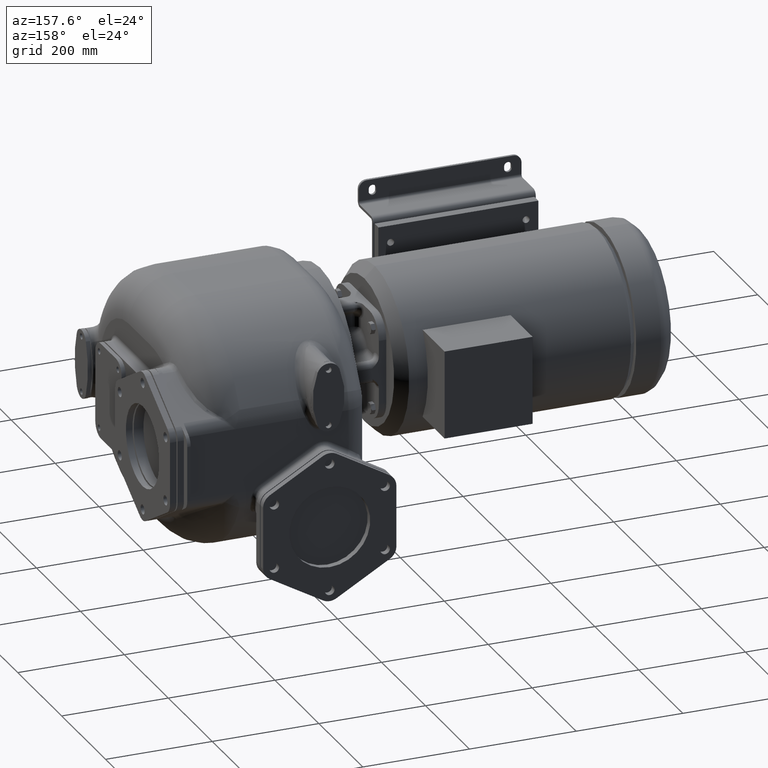
[diagram: clean part render]
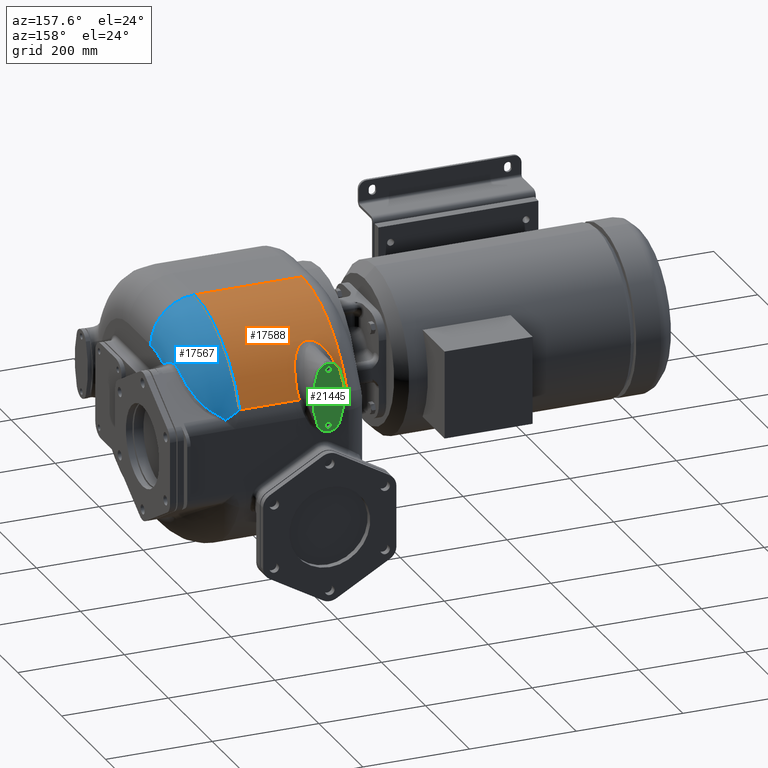
[diagram: same view with three faces highlighted in distinct colors, each labeled with its STEP entity id]
A machine part, auxiliary view with three faces highlighted in distinct colors.
Their STEP definitions:

[orange] entity #17588 — the highlighted cylindrical surface (partial cylindrical patch) has radius 226 mm, axis along (-1, 0, 0).
#3489=CARTESIAN_POINT('',(-4.034881129469E1,5.231279916753E2,6.666742171816E1));
#3490=CARTESIAN_POINT('',(-4.043840267067E1,5.227933993047E2,6.741168625166E1));
#3491=CARTESIAN_POINT('',(-4.060598618357E1,5.221145232466E2,6.890021450731E1));
#3492=CARTESIAN_POINT('',(-4.082259501127E1,5.210663920347E2,7.113364725316E1));
#3493=CARTESIAN_POINT('',(-4.100409262714E1,5.199897189407E2,7.336410481959E1));
#3494=CARTESIAN_POINT('',(-4.115033374763E1,5.188853598650E2,7.558918757461E1));
#3495=CARTESIAN_POINT('',(-4.126107317232E1,5.177543769543E2,7.780629919051E1));
#3496=CARTESIAN_POINT('',(-4.133625331583E1,5.165978751163E2,8.001300796250E1));
#3497=CARTESIAN_POINT('',(-4.137578047467E1,5.154172087132E2,8.220664577575E1));
#3498=CARTESIAN_POINT('',(-4.137958977997E1,5.142139346996E2,8.438443395936E1));
#3499=CARTESIAN_POINT('',(-4.134780671973E1,5.129897179080E2,8.654367099281E1));
#3500=CARTESIAN_POINT('',(-4.128049118567E1,5.117460567476E2,8.868219260581E1));
#3501=CARTESIAN_POINT('',(-4.117780732028E1,5.104844860412E2,9.079797297946E1));
#3502=CARTESIAN_POINT('',(-4.104000874430E1,5.092066352411E2,9.288902159051E1));
#3503=CARTESIAN_POINT('',(-4.086728104064E1,5.079142659240E2,9.495332443292E1));
#3504=CARTESIAN_POINT('',(-4.065999576186E1,5.066092140676E2,9.698894118238E1));
#3505=CARTESIAN_POINT('',(-4.041851747124E1,5.052932936397E2,9.899414509073E1));
#3506=CARTESIAN_POINT('',(-4.014320101450E1,5.039682871077E2,1.009674159084E2));
#3507=CARTESIAN_POINT('',(-3.983456542529E1,5.026359960242E2,1.029073444997E2));
#3508=CARTESIAN_POINT('',(-3.949310892022E1,5.012985173833E2,1.048122357952E2));
#3509=CARTESIAN_POINT('',(-3.911949099977E1,4.999580318657E2,1.066804364840E2));
#3510=CARTESIAN_POINT('',(-3.871450171215E1,4.986167676446E2,1.085103753053E2));
#3511=CARTESIAN_POINT('',(-3.827892120253E1,4.97277345E2,1.103001041464E2));
#3512=CARTESIAN_POINT('',(-3.781383236690E1,4.959423404236E2,1.120479022969E2));
#3513=CARTESIAN_POINT('',(-3.732034322288E1,4.946144880277E2,1.137519941261E2));
#3514=CARTESIAN_POINT('',(-3.679962749675E1,4.932966933678E2,1.154105392733E2));
#3515=CARTESIAN_POINT('',(-3.625328860371E1,4.919918580843E2,1.170218529688E2));
#3516=CARTESIAN_POINT('',(-3.568257640464E1,4.907025418829E2,1.185847936695E2));
#3517=CARTESIAN_POINT('',(-3.508885701845E1,4.894310897602E2,1.200985582785E2));
#3518=CARTESIAN_POINT('',(-3.447377817542E1,4.881798179152E2,1.215624367729E2));
#3519=CARTESIAN_POINT('',(-3.383862022484E1,4.869507770897E2,1.229760709294E2));
#3520=CARTESIAN_POINT('',(-3.318503713312E1,4.857458828797E2,1.243392739970E2));
#3521=CARTESIAN_POINT('',(-3.251465201643E1,4.845669622843E2,1.256519640245E2));
#3522=CARTESIAN_POINT('',(-3.182883323343E1,4.834156516315E2,1.269142629182E2));
#3523=CARTESIAN_POINT('',(-3.112943094373E1,4.822934682781E2,1.281264013235E2));
#3524=CARTESIAN_POINT('',(-3.041788296111E1,4.812016391618E2,1.292888898294E2));
#3525=CARTESIAN_POINT('',(-2.969550329272E1,4.801410059383E2,1.304025949371E2));
#3526=CARTESIAN_POINT('',(-2.896387760903E1,4.791122255273E2,1.314685045485E2));
#3527=CARTESIAN_POINT('',(-2.822437138835E1,4.781163551029E2,1.324871275090E2));
#3528=CARTESIAN_POINT('',(-2.747883177563E1,4.771543291465E2,1.334590490259E2));
#3529=CARTESIAN_POINT('',(-2.672916939532E1,4.762269177008E2,1.343849629823E2));
#3530=CARTESIAN_POINT('',(-2.597657639124E1,4.753347181670E2,1.352656733753E2));
#3531=CARTESIAN_POINT('',(-2.522287518781E1,4.744779972333E2,1.361022397176E2));
#3532=CARTESIAN_POINT('',(-2.446943995045E1,4.736568953076E2,1.368957673432E2));
#3533=CARTESIAN_POINT('',(-2.371703801963E1,4.728710953413E2,1.376477215100E2));
#3534=CARTESIAN_POINT('',(-2.296695517233E1,4.721199883568E2,1.383597532076E2));
#3535=CARTESIAN_POINT('',(-2.221979471068E1,4.714031267891E2,1.390332708732E2));
#3536=CARTESIAN_POINT('',(-2.147627617047E1,4.707198474818E2,1.396698045658E2));
#3537=CARTESIAN_POINT('',(-2.073731695626E1,4.700692390429E2,1.402710311737E2));
#3538=CARTESIAN_POINT('',(-2.000314215667E1,4.694506714915E2,1.408382897348E2));
#3539=CARTESIAN_POINT('',(-1.927434424921E1,4.688631493419E2,1.413731843857E2));
#3540=CARTESIAN_POINT('',(-1.855133900953E1,4.683056598236E2,1.418772620177E2));
#3541=CARTESIAN_POINT('',(-1.783421928553E1,4.677774756960E2,1.423517489380E2));
#3542=CARTESIAN_POINT('',(-1.712341568895E1,4.672774521665E2,1.427981888748E2));
#3543=CARTESIAN_POINT('',(-1.641899022449E1,4.668046828645E2,1.432178547759E2));
#3544=CARTESIAN_POINT('',(-1.572101013466E1,4.663583577802E2,1.436118866803E2));
#3545=CARTESIAN_POINT('',(-1.502966652234E1,4.659373249323E2,1.439816800992E2));
#3546=CARTESIAN_POINT('',(-1.434483684329E1,4.655408268734E2,1.443282402909E2));
#3547=CARTESIAN_POINT('',(-1.366654972949E1,4.651680012275E2,1.446526287394E2));
#3548=CARTESIAN_POINT('',(-1.299475930079E1,4.648178153928E2,1.449560188278E2));
#3549=CARTESIAN_POINT('',(-1.232930029791E1,4.644896264253E2,1.452392144470E2));
#3550=CARTESIAN_POINT('',(-1.167010087966E1,4.641825726662E2,1.455031814419E2));
#3551=CARTESIAN_POINT('',(-1.101694379460E1,4.638958174759E2,1.457488369290E2));
#3552=CARTESIAN_POINT('',(-1.036967757572E1,4.636287671610E2,1.459768669277E2));
#3553=CARTESIAN_POINT('',(-9.728076274112E0,4.633806520282E2,1.461880874093E2));
#3554=CARTESIAN_POINT('',(-9.091867682801E0,4.631508097990E2,1.463832031148E2));
#3555=CARTESIAN_POINT('',(-8.460863375274E0,4.629386895534E2,1.465628074972E2));
#3556=CARTESIAN_POINT('',(-7.834692341734E0,4.627436727882E2,1.467275360090E2));
#3557=CARTESIAN_POINT('',(-7.213119544507E0,4.625652226183E2,1.468779409385E2));
#3558=CARTESIAN_POINT('',(-6.595886132175E0,4.624028855057E2,1.470144919569E2));
#3559=CARTESIAN_POINT('',(-5.982612858585E0,4.622561989169E2,1.471376551479E2));
#3560=CARTESIAN_POINT('',(-5.373101343658E0,4.621247272340E2,1.472478635930E2));
#3561=CARTESIAN_POINT('',(-4.766978870246E0,4.620081628685E2,1.473454338734E2));
#3562=CARTESIAN_POINT('',(-4.163915379818E0,4.619060887541E2,1.474307657901E2));
#3563=CARTESIAN_POINT('',(-3.563461143278E0,4.618182424307E2,1.475041219536E2));
#3564=CARTESIAN_POINT('',(-2.965219998483E0,4.617443544656E2,1.475657638168E2));
#3565=CARTESIAN_POINT('',(-2.368941442614E0,4.616842121323E2,1.476158988816E2));
#3566=CARTESIAN_POINT('',(-1.774330493546E0,4.616376807034E2,1.476546636535E2));
#3567=CARTESIAN_POINT('',(-1.181367332302E0,4.616045466567E2,1.476822542062E2));
#3568=CARTESIAN_POINT('',(-5.899650440526E-1,4.615847817508E2,
1.476987078491E2));
#3569=CARTESIAN_POINT('',(-1.965071697042E-1,4.615803966876E2,
1.477023563135E2));
#3570=CARTESIAN_POINT('',(2.806081257791E-13,4.615803987135E2,
1.477023555046E2));
#3572=CARTESIAN_POINT('',(2.806081257791E-13,4.615803987135E2,
1.477023555046E2));
#3573=CARTESIAN_POINT('',(1.966707430850E-1,4.615803967245E2,1.477023562974E2));
#3574=CARTESIAN_POINT('',(5.904447502709E-1,4.615847873846E2,1.476987031534E2));
#3575=CARTESIAN_POINT('',(1.182286395754E0,4.616045762126E2,1.476822296030E2));
#3576=CARTESIAN_POINT('',(1.775659472608E0,4.616377496261E2,1.476546062528E2));
#3577=CARTESIAN_POINT('',(2.370652546062E0,4.616843331702E2,1.476157980240E2));
#3578=CARTESIAN_POINT('',(2.967288152497E0,4.617445421991E2,1.475656072728E2));
#3579=CARTESIAN_POINT('',(3.565868307715E0,4.618185089285E2,1.475038995388E2));
#3580=CARTESIAN_POINT('',(4.166647730898E0,4.619064484770E2,1.474304652623E2));
#3581=CARTESIAN_POINT('',(4.770030880015E0,4.620086296064E2,1.473450434742E2));
#3582=CARTESIAN_POINT('',(5.376471403173E0,4.621253165105E2,1.472473700248E2));
#3583=CARTESIAN_POINT('',(5.986305549906E0,4.622569287548E2,1.471370429058E2));
#3584=CARTESIAN_POINT('',(6.599912897314E0,4.624037740219E2,1.470137453228E2));
#3585=CARTESIAN_POINT('',(7.217497870988E0,4.625662938080E2,1.468770390888E2));
#3586=CARTESIAN_POINT('',(7.839450011452E0,4.627449524222E2,1.467264564114E2));
#3587=CARTESIAN_POINT('',(8.466033017340E0,4.629402065251E2,1.465615247345E2));
#3588=CARTESIAN_POINT('',(9.097492173142E0,4.631526005580E2,1.463816850656E2));
#3589=CARTESIAN_POINT('',(9.734215555534E0,4.633827602236E2,1.461862954405E2));
#3590=CARTESIAN_POINT('',(1.037640439850E1,4.636312447993E2,1.459747547897E2));
#3591=CARTESIAN_POINT('',(1.102434803134E1,4.638987277859E2,1.457463481542E2));
#3592=CARTESIAN_POINT('',(1.167829197170E1,4.641859930438E2,1.455002466015E2));
#3593=CARTESIAN_POINT('',(1.233840631113E1,4.644936465480E2,1.452357525093E2));
#3594=CARTESIAN_POINT('',(1.300492981159E1,4.648225440777E2,1.449519309356E2));
#3595=CARTESIAN_POINT('',(1.367795318247E1,4.651735670879E2,1.446477971924E2));
#3596=CARTESIAN_POINT('',(1.435766537748E1,4.655473740136E2,1.443225318256E2));
#3597=CARTESIAN_POINT('',(1.504413009598E1,4.659450246054E2,1.439749351540E2));
#3598=CARTESIAN_POINT('',(1.573734015406E1,4.663674038555E2,1.436039225992E2));
#3599=CARTESIAN_POINT('',(1.643743406378E1,4.668152851109E2,1.432084709928E2));
#3600=CARTESIAN_POINT('',(1.714420926426E1,4.672898396321E2,1.427871630939E2));
#3601=CARTESIAN_POINT('',(1.785760473377E1,4.677918852563E2,1.423388464878E2));
#3602=CARTESIAN_POINT('',(1.857754819266E1,4.683223334284E2,1.418622375665E2));
#3603=CARTESIAN_POINT('',(1.930358411463E1,4.688823334184E2,1.413557816570E2));
#3604=CARTESIAN_POINT('',(2.003561885947E1,4.694726070950E2,1.408182496121E2));
#3605=CARTESIAN_POINT('',(2.077311007695E1,4.700940918900E2,1.402481553978E2));
#3606=CARTESIAN_POINT('',(2.151536061973E1,4.707476964024E2,1.396439678358E2));
#3607=CARTESIAN_POINT('',(2.226203940194E1,4.714339297615E2,1.390044545626E2));
#3608=CARTESIAN_POINT('',(2.301201575971E1,4.721535153130E2,1.383281121195E2));
#3609=CARTESIAN_POINT('',(2.376437801296E1,4.729069061667E2,1.376136114562E2));
#3610=CARTESIAN_POINT('',(2.451844091624E1,4.736944303301E2,1.368596667755E2));
#3611=CARTESIAN_POINT('',(2.527299299494E1,4.745166973798E2,1.360646380481E2));
#3612=CARTESIAN_POINT('',(2.602720030017E1,4.753739691150E2,1.352271284171E2));
#3613=CARTESIAN_POINT('',(2.678006000991E1,4.762664910553E2,1.343456679196E2));
#3614=CARTESIAN_POINT('',(2.753025421969E1,4.771945243447E2,1.334186731284E2));
#3615=CARTESIAN_POINT('',(2.827692349056E1,4.781580068545E2,1.324447831087E2));
#3616=CARTESIAN_POINT('',(2.901841924255E1,4.791565741869E2,1.314228517594E2));
#3617=CARTESIAN_POINT('',(2.975320674038E1,4.801897391818E2,1.303517727569E2));
#3618=CARTESIAN_POINT('',(3.048000816953E1,4.812566487215E2,1.292307389536E2));
#3619=CARTESIAN_POINT('',(3.119673947915E1,4.823561251855E2,1.280592220399E2));
#3620=CARTESIAN_POINT('',(3.190182180154E1,4.834868718046E2,1.268367694861E2));
#3621=CARTESIAN_POINT('',(3.259353673E1,4.846471737141E2,1.255633434138E2));
#3622=CARTESIAN_POINT('',(3.326972139491E1,4.858350675100E2,1.242391679784E2));
#3623=CARTESIAN_POINT('',(3.392879148346E1,4.870484497130E2,1.228646298420E2));
#3624=CARTESIAN_POINT('',(3.456893355876E1,4.882850985137E2,1.214402712466E2));
#3625=CARTESIAN_POINT('',(3.518834473786E1,4.895427253883E2,1.199667460031E2));
#3626=CARTESIAN_POINT('',(3.578563526984E1,4.908189321960E2,1.184448869752E2));
#3627=CARTESIAN_POINT('',(3.635925325057E1,4.921115015014E2,1.168753695447E2));
#3628=CARTESIAN_POINT('',(3.690787666717E1,4.934181538011E2,1.152590012432E2));
#3629=CARTESIAN_POINT('',(3.743033580608E1,4.947365163640E2,1.135967784610E2));
#3630=CARTESIAN_POINT('',(3.792527298229E1,4.960641192050E2,1.118899133465E2));
#3631=CARTESIAN_POINT('',(3.839167973703E1,4.973984940042E2,1.101397256788E2));
#3632=CARTESIAN_POINT('',(3.882848069107E1,4.987370560365E2,1.083478150114E2));
#3633=CARTESIAN_POINT('',(3.923458423988E1,5.000771787180E2,1.065159887992E2));
#3634=CARTESIAN_POINT('',(3.960921522314E1,5.014162463946E2,1.046462129242E2));
#3635=CARTESIAN_POINT('',(3.995156642848E1,5.027519725435E2,1.027401670679E2));
#3636=CARTESIAN_POINT('',(4.026097681259E1,5.040821188621E2,1.007996222762E2));
#3637=CARTESIAN_POINT('',(4.053694120263E1,5.054045222692E2,9.882641369995E1));
#3638=CARTESIAN_POINT('',(4.077890709749E1,5.067172430537E2,9.682221373445E1));
#3639=CARTESIAN_POINT('',(4.098651107914E1,5.080183656416E2,9.478882361025E1));
#3640=CARTESIAN_POINT('',(4.115939494957E1,5.093060272243E2,9.272814170162E1));
#3641=CARTESIAN_POINT('',(4.129720412640E1,5.105784215742E2,9.064216412235E1));
#3642=CARTESIAN_POINT('',(4.139976784576E1,5.118338031650E2,8.853298724104E1));
#3643=CARTESIAN_POINT('',(4.146685199854E1,5.130705927478E2,8.640263060306E1));
#3644=CARTESIAN_POINT('',(4.149831411835E1,5.142873094740E2,8.425314195686E1));
#3645=CARTESIAN_POINT('',(4.149411199923E1,5.154825107413E2,8.208670406083E1));
#3646=CARTESIAN_POINT('',(4.145414174880E1,5.166546186505E2,7.990597737225E1));
#3647=CARTESIAN_POINT('',(4.137848545911E1,5.178021583663E2,7.771370003192E1));
#3648=CARTESIAN_POINT('',(4.126725166084E1,5.189238639285E2,7.551247840437E1));
#3649=CARTESIAN_POINT('',(4.112051581599E1,5.200187210403E2,7.330466637799E1));
#3650=CARTESIAN_POINT('',(4.093853320844E1,5.210857543358E2,7.109277717998E1));
#3651=CARTESIAN_POINT('',(4.072146494171E1,5.221241845798E2,6.887913601789E1));
#3652=CARTESIAN_POINT('',(4.055360032606E1,5.227966150731E2,6.740453317168E1));
#3653=CARTESIAN_POINT('',(4.046387854225E1,5.231279916753E2,6.666742171816E1));
#3655=CARTESIAN_POINT('',(1.52E2,3.17E2,-2.6E1));
#3656=DIRECTION('',(1.E0,0.E0,0.E0));
#3657=DIRECTION('',(0.E0,9.120707596254E-1,4.100328394609E-1));
#3658=AXIS2_PLACEMENT_3D('',#3655,#3656,#3657);
#3660=DIRECTION('',(1.E0,6.466642403076E-13,0.E0));
#3661=VECTOR('',#3660,2.02E2);
#3662=CARTESIAN_POINT('',(-5.E1,3.169999999998E2,2.E2));
#3663=LINE('',#3662,#3661);
#3664=CARTESIAN_POINT('',(-5.E1,3.17E2,-2.6E1));
#3665=DIRECTION('',(-1.E0,0.E0,0.E0));
#3666=DIRECTION('',(0.E0,0.E0,1.E0));
#3667=AXIS2_PLACEMENT_3D('',#3664,#3665,#3666);
#3707=DIRECTION('',(1.E0,2.133279841483E-11,-4.741718024245E-11));
#3708=VECTOR('',#3707,9.651188705311E0);
#3709=CARTESIAN_POINT('',(-5.E1,5.231279916751E2,6.666742171862E1));
#3710=LINE('',#3709,#3708);
#6944=DIRECTION('',(1.E0,0.E0,0.E0));
#6945=VECTOR('',#6944,1.115361214577E2);
#6946=CARTESIAN_POINT('',(4.046387854225E1,5.231279916753E2,6.666742171816E1));
#6947=LINE('',#6946,#6945);
#12473=CARTESIAN_POINT('',(-5.E1,3.169999999998E2,2.E2));
#12474=CARTESIAN_POINT('',(1.52E2,3.169999999999E2,2.E2));
#12475=VERTEX_POINT('',#12473);
#12476=VERTEX_POINT('',#12474);
#12491=VERTEX_POINT('',#3489);
#12492=VERTEX_POINT('',#3570);
#12495=VERTEX_POINT('',#3653);
#12545=CARTESIAN_POINT('',(-5.E1,5.231279916753E2,6.666742171816E1));
#12547=VERTEX_POINT('',#12545);
#12591=CARTESIAN_POINT('',(1.52E2,5.231279916753E2,6.666742171816E1));
#12592=VERTEX_POINT('',#12591);
#17568=CARTESIAN_POINT('',(-8.7E1,3.17E2,-2.6E1));
#17569=DIRECTION('',(-1.E0,0.E0,0.E0));
#17570=DIRECTION('',(0.E0,0.E0,1.E0));
#17571=AXIS2_PLACEMENT_3D('',#17568,#17569,#17570);
#17572=CYLINDRICAL_SURFACE('',#17571,2.26E2);
#17574=ORIENTED_EDGE('',*,*,#17573,.T.);
#17576=ORIENTED_EDGE('',*,*,#17575,.T.);
#17578=ORIENTED_EDGE('',*,*,#17577,.T.);
#17579=ORIENTED_EDGE('',*,*,#17555,.T.);
#17581=ORIENTED_EDGE('',*,*,#17580,.F.);
#17583=ORIENTED_EDGE('',*,*,#17582,.T.);
#17585=ORIENTED_EDGE('',*,*,#17584,.T.);
#17586=EDGE_LOOP('',(#17574,#17576,#17578,#17579,#17581,#17583,#17585));
#17587=FACE_OUTER_BOUND('',#17586,.F.);
#17588=ADVANCED_FACE('',(#17587),#17572,.T.);
#3571=B_SPLINE_CURVE_WITH_KNOTS('',3,(#3489,#3490,#3491,#3492,#3493,#3494,#3495,
#3496,#3497,#3498,#3499,#3500,#3501,#3502,#3503,#3504,#3505,#3506,#3507,#3508,
#3509,#3510,#3511,#3512,#3513,#3514,#3515,#3516,#3517,#3518,#3519,#3520,#3521,
#3522,#3523,#3524,#3525,#3526,#3527,#3528,#3529,#3530,#3531,#3532,#3533,#3534,
#3535,#3536,#3537,#3538,#3539,#3540,#3541,#3542,#3543,#3544,#3545,#3546,#3547,
#3548,#3549,#3550,#3551,#3552,#3553,#3554,#3555,#3556,#3557,#3558,#3559,#3560,
#3561,#3562,#3563,#3564,#3565,#3566,#3567,#3568,#3569,#3570),.UNSPECIFIED.,.F.,
.F.,(4,1,1,1,1,1,1,1,1,1,1,1,1,1,1,1,1,1,1,1,1,1,1,1,1,1,1,1,1,1,1,1,1,1,1,1,1,
1,1,1,1,1,1,1,1,1,1,1,1,1,1,1,1,1,1,1,1,1,1,1,1,1,1,1,1,1,1,1,1,1,1,1,1,1,1,1,1,
1,1,4),(0.E0,1.265822784810E-2,2.531645569620E-2,3.797468354430E-2,
5.063291139241E-2,6.329113924051E-2,7.594936708861E-2,8.860759493671E-2,
1.012658227848E-1,1.139240506329E-1,1.265822784810E-1,1.392405063291E-1,
1.518987341772E-1,1.645569620253E-1,1.772151898734E-1,1.898734177215E-1,
2.025316455696E-1,2.151898734177E-1,2.278481012658E-1,2.405063291139E-1,
2.531645569620E-1,2.658227848101E-1,2.784810126582E-1,2.911392405063E-1,
3.037974683544E-1,3.164556962025E-1,3.291139240506E-1,3.417721518987E-1,
3.544303797468E-1,3.670886075949E-1,3.797468354430E-1,3.924050632911E-1,
4.050632911392E-1,4.177215189873E-1,4.303797468354E-1,4.430379746835E-1,
4.556962025316E-1,4.683544303797E-1,4.810126582278E-1,4.936708860759E-1,
5.063291139241E-1,5.189873417722E-1,5.316455696203E-1,5.443037974684E-1,
5.569620253165E-1,5.696202531646E-1,5.822784810127E-1,5.949367088608E-1,
6.075949367089E-1,6.202531645570E-1,6.329113924051E-1,6.455696202532E-1,
6.582278481013E-1,6.708860759494E-1,6.835443037975E-1,6.962025316456E-1,
7.088607594937E-1,7.215189873418E-1,7.341772151899E-1,7.468354430380E-1,
7.594936708861E-1,7.721518987342E-1,7.848101265823E-1,7.974683544304E-1,
8.101265822785E-1,8.227848101266E-1,8.354430379747E-1,8.481012658228E-1,
8.607594936709E-1,8.734177215190E-1,8.860759493671E-1,8.987341772152E-1,
9.113924050633E-1,9.240506329114E-1,9.367088607595E-1,9.493670886076E-1,
9.620253164557E-1,9.746835443038E-1,9.873417721519E-1,1.E0),.UNSPECIFIED.);
#3654=B_SPLINE_CURVE_WITH_KNOTS('',3,(#3572,#3573,#3574,#3575,#3576,#3577,#3578,
#3579,#3580,#3581,#3582,#3583,#3584,#3585,#3586,#3587,#3588,#3589,#3590,#3591,
#3592,#3593,#3594,#3595,#3596,#3597,#3598,#3599,#3600,#3601,#3602,#3603,#3604,
#3605,#3606,#3607,#3608,#3609,#3610,#3611,#3612,#3613,#3614,#3615,#3616,#3617,
#3618,#3619,#3620,#3621,#3622,#3623,#3624,#3625,#3626,#3627,#3628,#3629,#3630,
#3631,#3632,#3633,#3634,#3635,#3636,#3637,#3638,#3639,#3640,#3641,#3642,#3643,
#3644,#3645,#3646,#3647,#3648,#3649,#3650,#3651,#3652,#3653),.UNSPECIFIED.,.F.,
.F.,(4,1,1,1,1,1,1,1,1,1,1,1,1,1,1,1,1,1,1,1,1,1,1,1,1,1,1,1,1,1,1,1,1,1,1,1,1,
1,1,1,1,1,1,1,1,1,1,1,1,1,1,1,1,1,1,1,1,1,1,1,1,1,1,1,1,1,1,1,1,1,1,1,1,1,1,1,1,
1,1,4),(0.E0,1.265822784810E-2,2.531645569620E-2,3.797468354430E-2,
5.063291139241E-2,6.329113924051E-2,7.594936708861E-2,8.860759493671E-2,
1.012658227848E-1,1.139240506329E-1,1.265822784810E-1,1.392405063291E-1,
1.518987341772E-1,1.645569620253E-1,1.772151898734E-1,1.898734177215E-1,
2.025316455696E-1,2.151898734177E-1,2.278481012658E-1,2.405063291139E-1,
2.531645569620E-1,2.658227848101E-1,2.784810126582E-1,2.911392405063E-1,
3.037974683544E-1,3.164556962025E-1,3.291139240506E-1,3.417721518987E-1,
3.544303797468E-1,3.670886075949E-1,3.797468354430E-1,3.924050632911E-1,
4.050632911392E-1,4.177215189873E-1,4.303797468354E-1,4.430379746835E-1,
4.556962025316E-1,4.683544303797E-1,4.810126582278E-1,4.936708860759E-1,
5.063291139241E-1,5.189873417722E-1,5.316455696203E-1,5.443037974684E-1,
5.569620253165E-1,5.696202531646E-1,5.822784810127E-1,5.949367088608E-1,
6.075949367089E-1,6.202531645570E-1,6.329113924051E-1,6.455696202532E-1,
6.582278481013E-1,6.708860759494E-1,6.835443037975E-1,6.962025316456E-1,
7.088607594937E-1,7.215189873418E-1,7.341772151899E-1,7.468354430380E-1,
7.594936708861E-1,7.721518987342E-1,7.848101265823E-1,7.974683544304E-1,
8.101265822785E-1,8.227848101266E-1,8.354430379747E-1,8.481012658228E-1,
8.607594936709E-1,8.734177215190E-1,8.860759493671E-1,8.987341772152E-1,
9.113924050633E-1,9.240506329114E-1,9.367088607595E-1,9.493670886076E-1,
9.620253164557E-1,9.746835443038E-1,9.873417721519E-1,1.E0),.UNSPECIFIED.);
#3659=CIRCLE('',#3658,2.26E2);
#3668=CIRCLE('',#3667,2.26E2);
#17555=EDGE_CURVE('',#12592,#12476,#3659,.T.);
#17573=EDGE_CURVE('',#12491,#12492,#3571,.T.);
#17575=EDGE_CURVE('',#12492,#12495,#3654,.T.);
#17577=EDGE_CURVE('',#12495,#12592,#6947,.T.);
#17580=EDGE_CURVE('',#12475,#12476,#3663,.T.);
#17582=EDGE_CURVE('',#12475,#12547,#3668,.T.);
#17584=EDGE_CURVE('',#12547,#12491,#3710,.T.);

[blue] entity #17567 — the highlighted toroidal blend (fillet) surface has major radius 144 mm and minor (blend) radius 82 mm.
#3215=CARTESIAN_POINT('',(1.52E2,3.17E2,1.18E2));
#3216=DIRECTION('',(0.E0,-1.E0,0.E0));
#3217=DIRECTION('',(1.E0,0.E0,0.E0));
#3218=AXIS2_PLACEMENT_3D('',#3215,#3216,#3217);
#3247=CARTESIAN_POINT('',(2.34E2,3.17E2,-2.6E1));
#3248=DIRECTION('',(1.E0,0.E0,0.E0));
#3249=DIRECTION('',(0.E0,3.920216377864E-1,9.199559965060E-1));
#3250=AXIS2_PLACEMENT_3D('',#3247,#3248,#3249);
#3338=CARTESIAN_POINT('',(2.321317186955E2,3.927035971021E2,1.165492718343E2));
#3339=CARTESIAN_POINT('',(2.322515144893E2,3.921139237791E2,1.162379163257E2));
#3340=CARTESIAN_POINT('',(2.324805429428E2,3.909245855901E2,1.156104197928E2));
#3341=CARTESIAN_POINT('',(2.327912722279E2,3.891121230468E2,1.146557054030E2));
#3342=CARTESIAN_POINT('',(2.330686238635E2,3.872697094560E2,1.136868201664E2));
#3343=CARTESIAN_POINT('',(2.333118196198E2,3.853966268619E2,1.127034952409E2));
#3344=CARTESIAN_POINT('',(2.335200743727E2,3.834919360852E2,1.117053337833E2));
#3345=CARTESIAN_POINT('',(2.336925754495E2,3.815546156491E2,1.106919107675E2));
#3346=CARTESIAN_POINT('',(2.338286851201E2,3.795798967100E2,1.096608431027E2));
#3347=CARTESIAN_POINT('',(2.339272692212E2,3.775651036005E2,1.086108673808E2));
#3348=CARTESIAN_POINT('',(2.339867897909E2,3.755193127782E2,1.075468336934E2));
#3349=CARTESIAN_POINT('',(2.340000000029E2,3.741428994910E2,1.068323819433E2));
#3350=CARTESIAN_POINT('',(2.34E2,3.734511158413E2,1.064736634968E2));
#3352=CARTESIAN_POINT('',(1.52E2,5.231279916753E2,6.666742171816E1));
#3353=CARTESIAN_POINT('',(1.525476098181E2,5.232437665645E2,6.640973919609E1));
#3354=CARTESIAN_POINT('',(1.536461971893E2,5.234613545323E2,6.589653706067E1));
#3355=CARTESIAN_POINT('',(1.552860278752E2,5.237590665574E2,6.510229427861E1));
#3356=CARTESIAN_POINT('',(1.569258113718E2,5.240213839529E2,6.429922502859E1));
#3357=CARTESIAN_POINT('',(1.585626294226E2,5.242500690671E2,6.348351132462E1));
#3358=CARTESIAN_POINT('',(1.601964887436E2,5.244446250715E2,6.265654197137E1));
#3359=CARTESIAN_POINT('',(1.618266311171E2,5.246051810007E2,6.181829357268E1));
#3360=CARTESIAN_POINT('',(1.634524442247E2,5.247316945766E2,6.096917398003E1));
#3361=CARTESIAN_POINT('',(1.650726208904E2,5.248242658150E2,6.010956585710E1));
#3362=CARTESIAN_POINT('',(1.666861503339E2,5.248826961255E2,5.924063410068E1));
#3363=CARTESIAN_POINT('',(1.682920369916E2,5.249068898246E2,5.836343293712E1));
#3364=CARTESIAN_POINT('',(1.698893466095E2,5.248967896786E2,5.747903339403E1));
#3365=CARTESIAN_POINT('',(1.714771279006E2,5.248524248093E2,5.658844627062E1));
#3366=CARTESIAN_POINT('',(1.730550071659E2,5.247737512938E2,5.569260335306E1));
#3367=CARTESIAN_POINT('',(1.746228044361E2,5.246611018996E2,5.479130765666E1));
#3368=CARTESIAN_POINT('',(1.761801775788E2,5.245146259742E2,5.388491649762E1));
#3369=CARTESIAN_POINT('',(1.777271202571E2,5.243342933636E2,5.297386472911E1));
#3370=CARTESIAN_POINT('',(1.787515026607E2,5.241915280867E2,5.236361443290E1));
#3371=CARTESIAN_POINT('',(1.792618516943E2,5.241144961274E2,5.205787977835E1));
#3373=CARTESIAN_POINT('',(1.792618516943E2,5.241144961274E2,5.205787977835E1));
#3374=CARTESIAN_POINT('',(1.794398320385E2,5.239783655962E2,5.224119004815E1));
#3375=CARTESIAN_POINT('',(1.798112597407E2,5.236956159346E2,5.261428924797E1));
#3376=CARTESIAN_POINT('',(1.804160180316E2,5.232393952509E2,5.319034590616E1));
#3377=CARTESIAN_POINT('',(1.810710228078E2,5.227487469259E2,5.378146207741E1));
#3378=CARTESIAN_POINT('',(1.817781252528E2,5.222216166884E2,5.438603303125E1));
#3379=CARTESIAN_POINT('',(1.825384507413E2,5.216559666116E2,5.500252034707E1));
#3380=CARTESIAN_POINT('',(1.833534192400E2,5.210486010806E2,5.563130357166E1));
#3381=CARTESIAN_POINT('',(1.842171511353E2,5.204022026262E2,5.626565503895E1));
#3382=CARTESIAN_POINT('',(1.851188037123E2,5.197236805795E2,5.689503317911E1));
#3383=CARTESIAN_POINT('',(1.860522581605E2,5.190161071538E2,5.751439886623E1));
#3384=CARTESIAN_POINT('',(1.870180884409E2,5.182772518212E2,5.812399793006E1));
#3385=CARTESIAN_POINT('',(1.880133311360E2,5.175075113341E2,5.872170797635E1));
#3386=CARTESIAN_POINT('',(1.890304924486E2,5.167114506013E2,5.930186276848E1));
#3387=CARTESIAN_POINT('',(1.900633351963E2,5.158926644931E2,5.986064552426E1));
#3388=CARTESIAN_POINT('',(1.907558414014E2,5.153360938961E2,6.021573494506E1));
#3389=CARTESIAN_POINT('',(1.911034203014E2,5.150546779088E2,6.038923906389E1));
#3391=CARTESIAN_POINT('',(1.911034203014E2,5.150546779088E2,6.038923906389E1));
#3392=CARTESIAN_POINT('',(1.914705191455E2,5.147574621290E2,6.057248726E1));
#3393=CARTESIAN_POINT('',(1.922031359568E2,5.141517667587E2,6.094593266235E1));
#3394=CARTESIAN_POINT('',(1.932961486046E2,5.132094202626E2,6.152694064062E1));
#3395=CARTESIAN_POINT('',(1.943833260291E2,5.122321788532E2,6.212945729494E1));
#3396=CARTESIAN_POINT('',(1.954643373029E2,5.112192121138E2,6.275399730970E1));
#3397=CARTESIAN_POINT('',(1.965389322569E2,5.101695644483E2,6.340113876062E1));
#3398=CARTESIAN_POINT('',(1.976067582258E2,5.090822992510E2,6.407145239221E1));
#3399=CARTESIAN_POINT('',(1.986673211673E2,5.079565657185E2,6.476545380427E1));
#3400=CARTESIAN_POINT('',(1.997200699077E2,5.067915223362E2,6.548364794977E1));
#3401=CARTESIAN_POINT('',(2.007642508143E2,5.055865285318E2,6.622641833700E1));
#3402=CARTESIAN_POINT('',(2.018000635657E2,5.043397617003E2,6.699487498732E1));
#3403=CARTESIAN_POINT('',(2.028277767553E2,5.030490943993E2,6.779030941353E1));
#3404=CARTESIAN_POINT('',(2.038477649826E2,5.017119669027E2,6.861427523452E1));
#3405=CARTESIAN_POINT('',(2.048579737418E2,5.003288685377E2,6.946644768637E1));
#3406=CARTESIAN_POINT('',(2.058555192387E2,4.989017891760E2,7.034557341514E1));
#3407=CARTESIAN_POINT('',(2.068380211396E2,4.974324587039E2,7.125054960526E1));
#3408=CARTESIAN_POINT('',(2.078029141393E2,4.959233274395E2,7.217983232245E1));
#3409=CARTESIAN_POINT('',(2.087476940200E2,4.943773055484E2,7.313159673505E1));
#3410=CARTESIAN_POINT('',(2.096700223833E2,4.927976492014E2,7.410379158600E1));
#3411=CARTESIAN_POINT('',(2.105684533114E2,4.911866920537E2,7.509492930556E1));
#3412=CARTESIAN_POINT('',(2.114436356993E2,4.895431553304E2,7.610576066551E1));
#3413=CARTESIAN_POINT('',(2.122958272817E2,4.878662704945E2,7.713670474694E1));
#3414=CARTESIAN_POINT('',(2.131253579884E2,4.861550070378E2,7.818832076573E1));
#3415=CARTESIAN_POINT('',(2.139320710302E2,4.844092022682E2,7.926065031337E1));
#3416=CARTESIAN_POINT('',(2.147157058803E2,4.826289580945E2,8.035357112184E1));
#3417=CARTESIAN_POINT('',(2.154760566476E2,4.808143285270E2,8.146696814E1));
#3418=CARTESIAN_POINT('',(2.162129371660E2,4.789654026779E2,8.260068090590E1));
#3419=CARTESIAN_POINT('',(2.169262809386E2,4.770819684468E2,8.375476930353E1));
#3420=CARTESIAN_POINT('',(2.176160278014E2,4.751638183128E2,8.492927258748E1));
#3421=CARTESIAN_POINT('',(2.182821293177E2,4.732107534373E2,8.612420114711E1));
#3422=CARTESIAN_POINT('',(2.189245536529E2,4.712225773008E2,8.733953220182E1));
#3423=CARTESIAN_POINT('',(2.195431844177E2,4.691993359337E2,8.857514085592E1));
#3424=CARTESIAN_POINT('',(2.201379399294E2,4.671410688792E2,8.983088717824E1));
#3425=CARTESIAN_POINT('',(2.207087295417E2,4.650479776018E2,9.110650512689E1));
#3426=CARTESIAN_POINT('',(2.212555073577E2,4.629202784790E2,9.240168155358E1));
#3427=CARTESIAN_POINT('',(2.217782546707E2,4.607581164023E2,9.371619777119E1));
#3428=CARTESIAN_POINT('',(2.222769842167E2,4.585616324822E2,9.504982384053E1));
#3429=CARTESIAN_POINT('',(2.227517480626E2,4.563309564074E2,9.640230210054E1));
#3430=CARTESIAN_POINT('',(2.232026262510E2,4.540662357865E2,9.777332918082E1));
#3431=CARTESIAN_POINT('',(2.236296176564E2,4.517680458625E2,9.916240265170E1));
#3432=CARTESIAN_POINT('',(2.240327735726E2,4.494369477432E2,1.005690025709E2));
#3433=CARTESIAN_POINT('',(2.244122041040E2,4.470734272359E2,1.019926091100E2));
#3434=CARTESIAN_POINT('',(2.247679819557E2,4.446783153763E2,1.034325208354E2));
#3435=CARTESIAN_POINT('',(2.251001780532E2,4.422526596596E2,1.048879308584E2));
#3436=CARTESIAN_POINT('',(2.254089339728E2,4.397973862228E2,1.063580517448E2));
#3437=CARTESIAN_POINT('',(2.256943785181E2,4.373136677842E2,1.078419691916E2));
#3438=CARTESIAN_POINT('',(2.259566296438E2,4.348029147650E2,1.093386688045E2));
#3439=CARTESIAN_POINT('',(2.261958599763E2,4.322664377991E2,1.108471441799E2));
#3440=CARTESIAN_POINT('',(2.264122442489E2,4.297056435955E2,1.123663496564E2));
#3441=CARTESIAN_POINT('',(2.266059600714E2,4.271216119272E2,1.138954991993E2));
#3442=CARTESIAN_POINT('',(2.267200682836E2,4.253849640354E2,1.149205311976E2));
#3443=CARTESIAN_POINT('',(2.267734300279E2,4.245127567426E2,1.154346437723E2));
#3445=CARTESIAN_POINT('',(2.267734300279E2,4.245127567426E2,1.154346437723E2));
#3446=CARTESIAN_POINT('',(2.267880339409E2,4.242740589799E2,1.155753366113E2));
#3447=CARTESIAN_POINT('',(2.268196665108E2,4.237928738021E2,1.158511027732E2));
#3448=CARTESIAN_POINT('',(2.268742961231E2,4.230597389222E2,1.162478741530E2));
#3449=CARTESIAN_POINT('',(2.269359798519E2,4.223160223708E2,1.166273000940E2));
#3450=CARTESIAN_POINT('',(2.270045919504E2,4.215622976572E2,1.169890279769E2));
#3451=CARTESIAN_POINT('',(2.270799991793E2,4.207991943582E2,1.173326681860E2));
#3452=CARTESIAN_POINT('',(2.271620631497E2,4.200273375489E2,1.176578289682E2));
#3453=CARTESIAN_POINT('',(2.272506398910E2,4.192473404330E2,1.179641233140E2));
#3454=CARTESIAN_POINT('',(2.273455789822E2,4.184599034682E2,1.182511022153E2));
#3455=CARTESIAN_POINT('',(2.274467401E2,4.176652495855E2,1.185186031692E2));
#3456=CARTESIAN_POINT('',(2.275539749567E2,4.168634074018E2,1.187665879372E2));
#3457=CARTESIAN_POINT('',(2.276671545677E2,4.160543585084E2,1.189949560395E2));
#3458=CARTESIAN_POINT('',(2.277860926397E2,4.152384901760E2,1.192034565874E2));
#3459=CARTESIAN_POINT('',(2.279105204245E2,4.144166863539E2,1.193917223562E2));
#3460=CARTESIAN_POINT('',(2.280401641024E2,4.135897639040E2,1.195594394893E2));
#3461=CARTESIAN_POINT('',(2.281747400571E2,4.127585091023E2,1.197063352880E2));
#3462=CARTESIAN_POINT('',(2.283139643288E2,4.119235359244E2,1.198322424611E2));
#3463=CARTESIAN_POINT('',(2.284575446902E2,4.110854745076E2,1.199369959149E2));
#3464=CARTESIAN_POINT('',(2.286051646731E2,4.102450490656E2,1.200204349190E2));
#3465=CARTESIAN_POINT('',(2.287564817915E2,4.094030813254E2,1.200824144689E2));
#3466=CARTESIAN_POINT('',(2.289111455133E2,4.085603992957E2,1.201228144559E2));
#3467=CARTESIAN_POINT('',(2.290688134580E2,4.077176942530E2,1.201415785546E2));
#3468=CARTESIAN_POINT('',(2.292291453992E2,4.068755900418E2,1.201386859054E2));
#3469=CARTESIAN_POINT('',(2.293917871554E2,4.060347664602E2,1.201141276492E2));
#3470=CARTESIAN_POINT('',(2.295563462601E2,4.051960729061E2,1.200679286292E2));
#3471=CARTESIAN_POINT('',(2.297224295060E2,4.043603397920E2,1.200001485601E2));
#3472=CARTESIAN_POINT('',(2.298896417257E2,4.035283605208E2,1.199108989782E2));
#3473=CARTESIAN_POINT('',(2.300575929051E2,4.027008937370E2,1.198003193464E2));
#3474=CARTESIAN_POINT('',(2.302258840133E2,4.018787376077E2,1.196685863051E2));
#3475=CARTESIAN_POINT('',(2.303940979134E2,4.010627793052E2,1.195159291028E2));
#3476=CARTESIAN_POINT('',(2.305618225825E2,4.002538780454E2,1.193426232874E2));
#3477=CARTESIAN_POINT('',(2.307286596825E2,3.994528306298E2,1.191489794630E2));
#3478=CARTESIAN_POINT('',(2.308942145415E2,3.986604403999E2,1.189353454561E2));
#3479=CARTESIAN_POINT('',(2.310581258290E2,3.978773662563E2,1.187020755184E2));
#3480=CARTESIAN_POINT('',(2.312200829136E2,3.971040499098E2,1.184494820677E2));
#3481=CARTESIAN_POINT('',(2.313797820649E2,3.963409275695E2,1.181778812893E2));
#3482=CARTESIAN_POINT('',(2.315368691253E2,3.955886514428E2,1.178877376072E2));
#3483=CARTESIAN_POINT('',(2.316909967345E2,3.948479023411E2,1.175795473910E2));
#3484=CARTESIAN_POINT('',(2.318418325459E2,3.941193485756E2,1.172538314874E2));
#3485=CARTESIAN_POINT('',(2.319890784343E2,3.934035550807E2,1.169110848555E2));
#3486=CARTESIAN_POINT('',(2.320846183543E2,3.929354420148E2,1.166716850009E2));
#3487=CARTESIAN_POINT('',(2.321317186955E2,3.927035971021E2,1.165492718343E2));
#3655=CARTESIAN_POINT('',(1.52E2,3.17E2,-2.6E1));
#3656=DIRECTION('',(1.E0,0.E0,0.E0));
#3657=DIRECTION('',(0.E0,9.120707596254E-1,4.100328394609E-1));
#3658=AXIS2_PLACEMENT_3D('',#3655,#3656,#3657);
#12474=CARTESIAN_POINT('',(1.52E2,3.169999999999E2,2.E2));
#12476=VERTEX_POINT('',#12474);
#12577=CARTESIAN_POINT('',(2.34E2,3.17E2,1.18E2));
#12578=VERTEX_POINT('',#12577);
#12591=CARTESIAN_POINT('',(1.52E2,5.231279916753E2,6.666742171816E1));
#12592=VERTEX_POINT('',#12591);
#12745=CARTESIAN_POINT('',(2.34E2,3.734511158413E2,1.064736634968E2));
#12746=VERTEX_POINT('',#12745);
#12749=VERTEX_POINT('',#3338);
#12751=VERTEX_POINT('',#3445);
#12753=VERTEX_POINT('',#3391);
#12755=VERTEX_POINT('',#3373);
#17547=CARTESIAN_POINT('',(1.52E2,3.17E2,-2.6E1));
#17548=DIRECTION('',(-1.E0,0.E0,0.E0));
#17549=DIRECTION('',(0.E0,9.151096726718E-1,4.032050185482E-1));
#17550=AXIS2_PLACEMENT_3D('',#17547,#17548,#17549);
#17551=TOROIDAL_SURFACE('',#17550,1.44E2,8.2E1);
#17552=ORIENTED_EDGE('',*,*,#17537,.T.);
#17553=ORIENTED_EDGE('',*,*,#17348,.T.);
#17554=ORIENTED_EDGE('',*,*,#17329,.T.);
#17556=ORIENTED_EDGE('',*,*,#17555,.F.);
#17558=ORIENTED_EDGE('',*,*,#17557,.T.);
#17560=ORIENTED_EDGE('',*,*,#17559,.T.);
#17562=ORIENTED_EDGE('',*,*,#17561,.T.);
#17564=ORIENTED_EDGE('',*,*,#17563,.T.);
#17565=EDGE_LOOP('',(#17552,#17553,#17554,#17556,#17558,#17560,#17562,#17564));
#17566=FACE_OUTER_BOUND('',#17565,.F.);
#17567=ADVANCED_FACE('',(#17566),#17551,.T.);
#3219=CIRCLE('',#3218,8.2E1);
#3251=CIRCLE('',#3250,1.44E2);
#3351=B_SPLINE_CURVE_WITH_KNOTS('',3,(#3338,#3339,#3340,#3341,#3342,#3343,#3344,
#3345,#3346,#3347,#3348,#3349,#3350),.UNSPECIFIED.,.F.,.F.,(4,1,1,1,1,1,1,1,1,1,
4),(0.E0,1.E-1,2.E-1,3.E-1,4.E-1,5.E-1,6.E-1,7.E-1,8.E-1,9.E-1,1.E0),
.UNSPECIFIED.);
#3372=B_SPLINE_CURVE_WITH_KNOTS('',3,(#3352,#3353,#3354,#3355,#3356,#3357,#3358,
#3359,#3360,#3361,#3362,#3363,#3364,#3365,#3366,#3367,#3368,#3369,#3370,#3371),
.UNSPECIFIED.,.F.,.F.,(4,1,1,1,1,1,1,1,1,1,1,1,1,1,1,1,1,4),(0.E0,
5.882352941176E-2,1.176470588235E-1,1.764705882353E-1,2.352941176471E-1,
2.941176470588E-1,3.529411764706E-1,4.117647058824E-1,4.705882352941E-1,
5.294117647059E-1,5.882352941176E-1,6.470588235294E-1,7.058823529412E-1,
7.647058823529E-1,8.235294117647E-1,8.823529411765E-1,9.411764705882E-1,1.E0),
.UNSPECIFIED.);
#3390=B_SPLINE_CURVE_WITH_KNOTS('',3,(#3373,#3374,#3375,#3376,#3377,#3378,#3379,
#3380,#3381,#3382,#3383,#3384,#3385,#3386,#3387,#3388,#3389),.UNSPECIFIED.,.F.,
.F.,(4,1,1,1,1,1,1,1,1,1,1,1,1,1,4),(0.E0,7.142857142857E-2,1.428571428571E-1,
2.142857142857E-1,2.857142857143E-1,3.571428571429E-1,4.285714285714E-1,5.E-1,
5.714285714286E-1,6.428571428571E-1,7.142857142857E-1,7.857142857143E-1,
8.571428571429E-1,9.285714285714E-1,1.E0),.UNSPECIFIED.);
#3444=B_SPLINE_CURVE_WITH_KNOTS('',3,(#3391,#3392,#3393,#3394,#3395,#3396,#3397,
#3398,#3399,#3400,#3401,#3402,#3403,#3404,#3405,#3406,#3407,#3408,#3409,#3410,
#3411,#3412,#3413,#3414,#3415,#3416,#3417,#3418,#3419,#3420,#3421,#3422,#3423,
#3424,#3425,#3426,#3427,#3428,#3429,#3430,#3431,#3432,#3433,#3434,#3435,#3436,
#3437,#3438,#3439,#3440,#3441,#3442,#3443),.UNSPECIFIED.,.F.,.F.,(4,1,1,1,1,1,1,
1,1,1,1,1,1,1,1,1,1,1,1,1,1,1,1,1,1,1,1,1,1,1,1,1,1,1,1,1,1,1,1,1,1,1,1,1,1,1,1,
1,1,1,4),(0.E0,2.E-2,4.E-2,6.E-2,8.E-2,1.E-1,1.2E-1,1.4E-1,1.6E-1,1.8E-1,2.E-1,
2.2E-1,2.4E-1,2.6E-1,2.8E-1,3.E-1,3.2E-1,3.4E-1,3.6E-1,3.8E-1,4.E-1,4.2E-1,
4.4E-1,4.6E-1,4.8E-1,5.E-1,5.2E-1,5.4E-1,5.6E-1,5.8E-1,6.E-1,6.2E-1,6.4E-1,
6.6E-1,6.8E-1,7.E-1,7.2E-1,7.4E-1,7.6E-1,7.8E-1,8.E-1,8.2E-1,8.4E-1,8.6E-1,
8.8E-1,9.E-1,9.2E-1,9.4E-1,9.6E-1,9.8E-1,1.E0),.UNSPECIFIED.);
#3488=B_SPLINE_CURVE_WITH_KNOTS('',3,(#3445,#3446,#3447,#3448,#3449,#3450,#3451,
#3452,#3453,#3454,#3455,#3456,#3457,#3458,#3459,#3460,#3461,#3462,#3463,#3464,
#3465,#3466,#3467,#3468,#3469,#3470,#3471,#3472,#3473,#3474,#3475,#3476,#3477,
#3478,#3479,#3480,#3481,#3482,#3483,#3484,#3485,#3486,#3487),.UNSPECIFIED.,.F.,
.F.,(4,1,1,1,1,1,1,1,1,1,1,1,1,1,1,1,1,1,1,1,1,1,1,1,1,1,1,1,1,1,1,1,1,1,1,1,1,
1,1,1,4),(0.E0,2.5E-2,5.E-2,7.5E-2,1.E-1,1.25E-1,1.5E-1,1.75E-1,2.E-1,2.25E-1,
2.5E-1,2.75E-1,3.E-1,3.25E-1,3.5E-1,3.75E-1,4.E-1,4.25E-1,4.5E-1,4.75E-1,5.E-1,
5.25E-1,5.5E-1,5.75E-1,6.E-1,6.25E-1,6.5E-1,6.75E-1,7.E-1,7.25E-1,7.5E-1,
7.75E-1,8.E-1,8.25E-1,8.5E-1,8.75E-1,9.E-1,9.25E-1,9.5E-1,9.75E-1,1.E0),
.UNSPECIFIED.);
#3659=CIRCLE('',#3658,2.26E2);
#17329=EDGE_CURVE('',#12578,#12476,#3219,.T.);
#17348=EDGE_CURVE('',#12746,#12578,#3251,.T.);
#17537=EDGE_CURVE('',#12749,#12746,#3351,.T.);
#17555=EDGE_CURVE('',#12592,#12476,#3659,.T.);
#17557=EDGE_CURVE('',#12592,#12755,#3372,.T.);
#17559=EDGE_CURVE('',#12755,#12753,#3390,.T.);
#17561=EDGE_CURVE('',#12753,#12751,#3444,.T.);
#17563=EDGE_CURVE('',#12751,#12749,#3488,.T.);

[green] entity #21445 — the highlighted planar face has unit normal (0, 1, 0).
#7527=CARTESIAN_POINT('',(-1.099999999963E2,5.59E2,7.899831845433E1));
#7528=DIRECTION('',(0.E0,1.E0,0.E0));
#7529=DIRECTION('',(9.322295967066E-1,0.E0,3.618673500390E-1));
#7530=AXIS2_PLACEMENT_3D('',#7527,#7528,#7529);
#7532=CARTESIAN_POINT('',(0.E0,5.59E2,1.217066369087E2));
#7533=DIRECTION('',(0.E0,1.E0,0.E0));
#7534=DIRECTION('',(-9.323701608822E-1,0.E0,3.615050249949E-1));
#7535=AXIS2_PLACEMENT_3D('',#7532,#7533,#7534);
#7537=CARTESIAN_POINT('',(1.1E2,5.59E2,7.899831845433E1));
#7538=DIRECTION('',(0.E0,1.E0,0.E0));
#7539=DIRECTION('',(-9.322295967101E-1,0.E0,-3.618673500301E-1));
#7540=AXIS2_PLACEMENT_3D('',#7537,#7538,#7539);
#7542=CARTESIAN_POINT('',(0.E0,5.59E2,3.629E1));
#7543=DIRECTION('',(0.E0,1.E0,0.E0));
#7544=DIRECTION('',(9.323701608822E-1,0.E0,-3.615050249948E-1));
#7545=AXIS2_PLACEMENT_3D('',#7542,#7543,#7544);
#7547=CARTESIAN_POINT('',(0.E0,5.59E2,2.649E1));
#7548=DIRECTION('',(0.E0,1.E0,0.E0));
#7549=DIRECTION('',(0.E0,0.E0,-1.E0));
#7550=AXIS2_PLACEMENT_3D('',#7547,#7548,#7549);
#7552=CARTESIAN_POINT('',(0.E0,5.59E2,2.649E1));
#7553=DIRECTION('',(0.E0,1.E0,0.E0));
#7554=DIRECTION('',(0.E0,0.E0,1.E0));
#7555=AXIS2_PLACEMENT_3D('',#7552,#7553,#7554);
#7557=CARTESIAN_POINT('',(0.E0,5.59E2,1.3149E2));
#7558=DIRECTION('',(0.E0,-1.E0,0.E0));
#7559=DIRECTION('',(0.E0,0.E0,1.E0));
#7560=AXIS2_PLACEMENT_3D('',#7557,#7558,#7559);
#7562=CARTESIAN_POINT('',(0.E0,5.59E2,1.3149E2));
#7563=DIRECTION('',(0.E0,-1.E0,0.E0));
#7564=DIRECTION('',(0.E0,0.E0,-1.E0));
#7565=AXIS2_PLACEMENT_3D('',#7562,#7563,#7564);
#13495=CARTESIAN_POINT('',(2.051214353941E1,5.59E2,1.296597474585E2));
#13496=CARTESIAN_POINT('',(2.051214353941E1,5.59E2,2.833688945011E1));
#13497=VERTEX_POINT('',#13495);
#13498=VERTEX_POINT('',#13496);
#13499=CARTESIAN_POINT('',(-2.051214353941E1,5.59E2,2.833688945011E1));
#13500=VERTEX_POINT('',#13499);
#13501=CARTESIAN_POINT('',(-2.051214353941E1,5.59E2,1.296597474585E2));
#13502=VERTEX_POINT('',#13501);
#13503=CARTESIAN_POINT('',(0.E0,5.59E2,2.074E1));
#13504=CARTESIAN_POINT('',(0.E0,5.59E2,3.224E1));
#13505=VERTEX_POINT('',#13503);
#13506=VERTEX_POINT('',#13504);
#13507=CARTESIAN_POINT('',(0.E0,5.59E2,1.3724E2));
#13508=CARTESIAN_POINT('',(0.E0,5.59E2,1.2574E2));
#13509=VERTEX_POINT('',#13507);
#13510=VERTEX_POINT('',#13508);
#21422=CARTESIAN_POINT('',(0.E0,5.59E2,7.899E1));
#21423=DIRECTION('',(0.E0,1.E0,0.E0));
#21424=DIRECTION('',(0.E0,0.E0,1.E0));
#21425=AXIS2_PLACEMENT_3D('',#21422,#21423,#21424);
#21426=PLANE('',#21425);
#21427=ORIENTED_EDGE('',*,*,#21358,.F.);
#21428=ORIENTED_EDGE('',*,*,#21373,.F.);
#21429=ORIENTED_EDGE('',*,*,#21388,.F.);
#21430=ORIENTED_EDGE('',*,*,#21415,.F.);
#21431=EDGE_LOOP('',(#21427,#21428,#21429,#21430));
#21432=FACE_OUTER_BOUND('',#21431,.F.);
#21434=ORIENTED_EDGE('',*,*,#21433,.T.);
#21436=ORIENTED_EDGE('',*,*,#21435,.T.);
#21437=EDGE_LOOP('',(#21434,#21436));
#21438=FACE_BOUND('',#21437,.F.);
#21440=ORIENTED_EDGE('',*,*,#21439,.F.);
#21442=ORIENTED_EDGE('',*,*,#21441,.F.);
#21443=EDGE_LOOP('',(#21440,#21442));
#21444=FACE_BOUND('',#21443,.F.);
#21445=ADVANCED_FACE('',(#21432,#21438,#21444),#21426,.T.);
#7531=CIRCLE('',#7530,1.399999999966E2);
#7536=CIRCLE('',#7535,2.2E1);
#7541=CIRCLE('',#7540,1.4E2);
#7546=CIRCLE('',#7545,2.2E1);
#7551=CIRCLE('',#7550,5.75E0);
#7556=CIRCLE('',#7555,5.75E0);
#7561=CIRCLE('',#7560,5.75E0);
#7566=CIRCLE('',#7565,5.75E0);
#21358=EDGE_CURVE('',#13497,#13498,#7531,.T.);
#21373=EDGE_CURVE('',#13502,#13497,#7536,.T.);
#21388=EDGE_CURVE('',#13500,#13502,#7541,.T.);
#21415=EDGE_CURVE('',#13498,#13500,#7546,.T.);
#21433=EDGE_CURVE('',#13505,#13506,#7551,.T.);
#21435=EDGE_CURVE('',#13506,#13505,#7556,.T.);
#21439=EDGE_CURVE('',#13509,#13510,#7561,.T.);
#21441=EDGE_CURVE('',#13510,#13509,#7566,.T.);